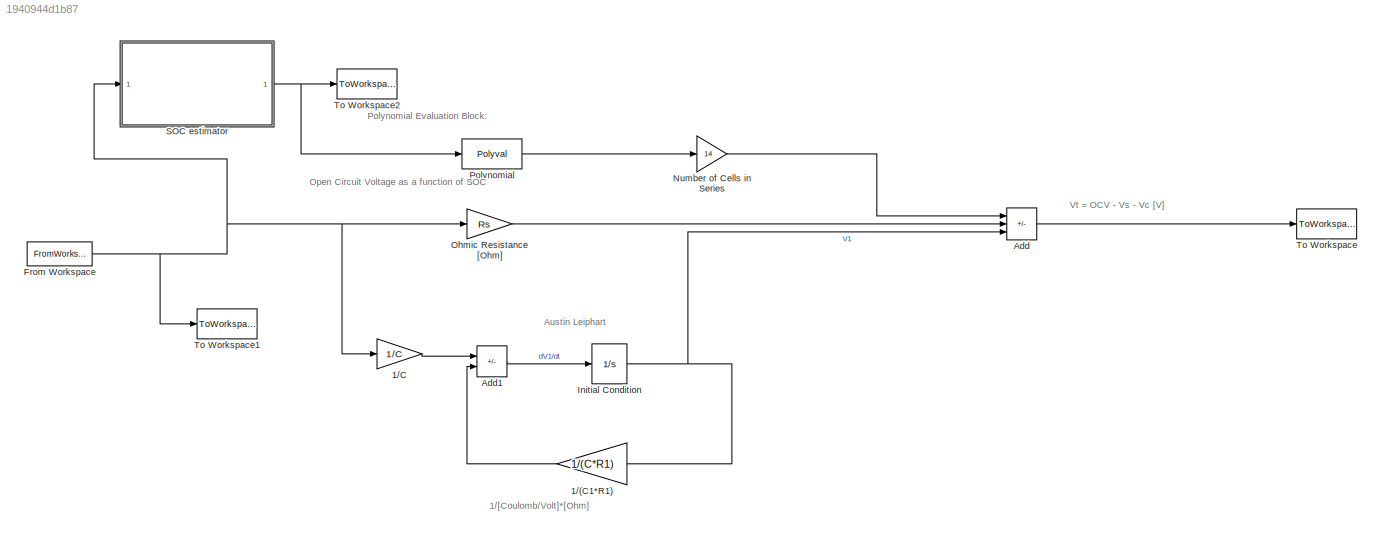
MODEL slx_1940944d1b87
KIND model
CONFIG AbsTol = auto
CONFIG EnableMultiTasking = off
CONFIG FixedStep = auto
CONFIG MaxStep = auto
CONFIG MinStep = auto
CONFIG RelTol = 1e-3
CONFIG SampleTimeConstraint = Unconstrained
CONFIG SolverName = VariableStepAuto
CONFIG StartTime = 0.0
CONFIG StopTime = 10.0
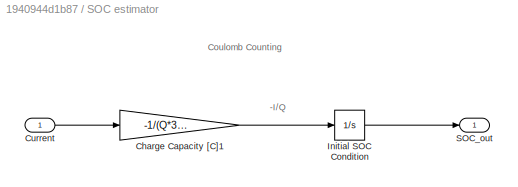
BLOCK [SubSystem]  SOC estimator
BLOCK [Gain]  SOC estimator/Charge Capacity [C]1
  Gain = -1/(Q*3600)
BLOCK [Inport]  SOC estimator/Current
BLOCK [Integrator]  SOC estimator/Initial SOC Condition
  InitialCondition = SOC_0
BLOCK [Outport]  SOC estimator/SOC_out
  VectorParamsAs1DForOutWhenUnconnected = off
BLOCK [Gain] 1//(C1*R1)
  Gain = 1/(C*R1)
BLOCK [Gain] 1//C
  Gain = 1/C
BLOCK [Sum] Add
  IconShape = rectangular
  Inputs = +--
BLOCK [Sum] Add1
  IconShape = rectangular
  Inputs = +-
BLOCK [FromWorkspace] From Workspace
  VariableName = I_app
BLOCK [Integrator] Initial Condition
BLOCK [Gain] Number of Cells in Series
  Gain = 14
BLOCK [Gain] Ohmic Resistance [Ohm]
  Gain = Rs
BLOCK [Polyval] Polynomial
  Coefs = [1.6155, -3.3842, 3.1980, 2.7675]
BLOCK [ToWorkspace] To Workspace
  FixptAsFi = on
  MaxDataPoints = inf
  SampleTime = -1
  Save2DSignal = 2-D array (concatenate along first dimension)
  VariableName = Vt
BLOCK [ToWorkspace] To Workspace1
  FixptAsFi = on
  MaxDataPoints = inf
  SampleTime = -1
  Save2DSignal = 2-D array (concatenate along first dimension)
  VariableName = I_Out
BLOCK [ToWorkspace] To Workspace2
  FixptAsFi = on
  MaxDataPoints = inf
  SampleTime = -1
  Save2DSignal = 2-D array (concatenate along first dimension)
  VariableName = SOC_Out
ANNOTATION (root): 1/[Coulomb/Volt]*[Ohm]
ANNOTATION (root): Austin Leiphart
ANNOTATION (root): Open Circuit Voltage as a function of SOC
ANNOTATION (root): Polynomial Evaluation Block:
ANNOTATION (root): Vt = OCV - Vs - Vc [V]
ANNOTATION  SOC estimator: -I/Q
ANNOTATION  SOC estimator: Coulomb Counting
LINE  SOC estimator/Charge Capacity [C]1:1 ->  SOC estimator/Initial SOC Condition:1
LINE  SOC estimator/Current:1 ->  SOC estimator/Charge Capacity [C]1:1
LINE  SOC estimator/Initial SOC Condition:1 ->  SOC estimator/SOC_out:1
NET  SOC estimator:1 -> Polynomial:1, To Workspace2:1
LINE 1//(C1*R1):1 -> Add1:2
LINE 1//C:1 -> Add1:1
LINE Add1:1 -> Initial Condition:1
LINE Add:1 -> To Workspace:1
NET From Workspace:1 ->  SOC estimator:1, 1//C:1, Ohmic Resistance [Ohm]:1, To Workspace1:1
NET Initial Condition:1 -> 1//(C1*R1):1, Add:3
LINE Number of Cells in Series:1 -> Add:1
LINE Ohmic Resistance [Ohm]:1 -> Add:2
LINE Polynomial:1 -> Number of Cells in Series:1
note: NET lines group one-source signal fan-out (src -> all destinations, sorted); 1:1 wires keep LINE
